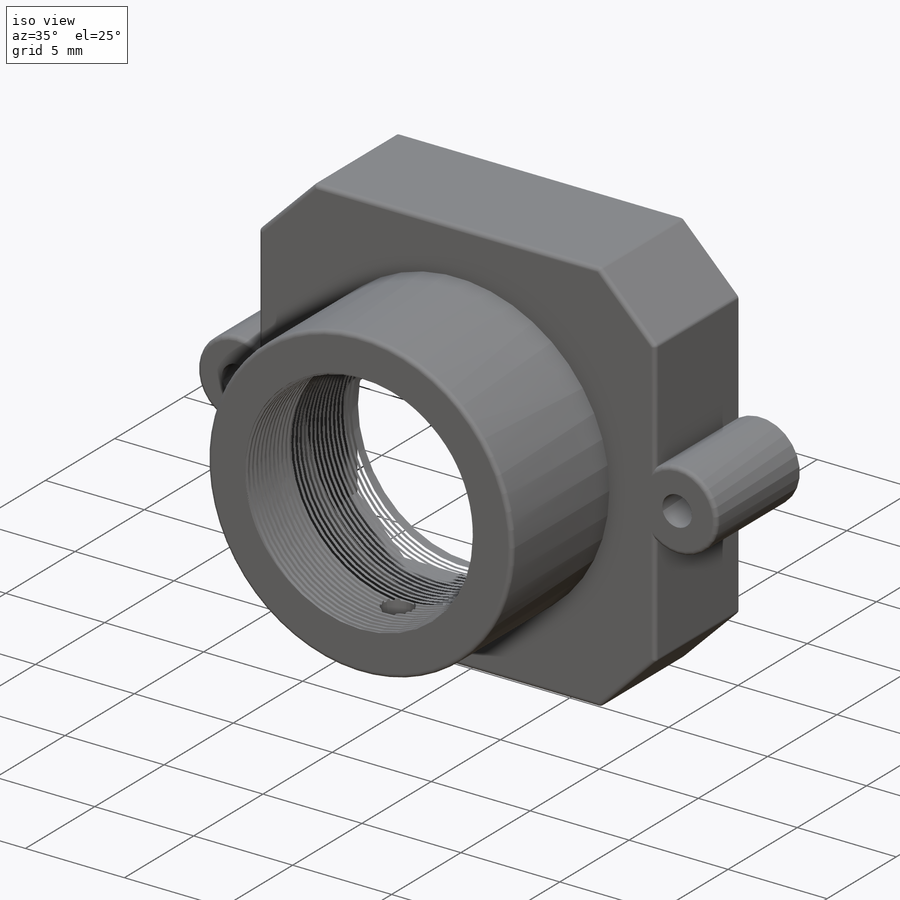
[diagram: iso view]
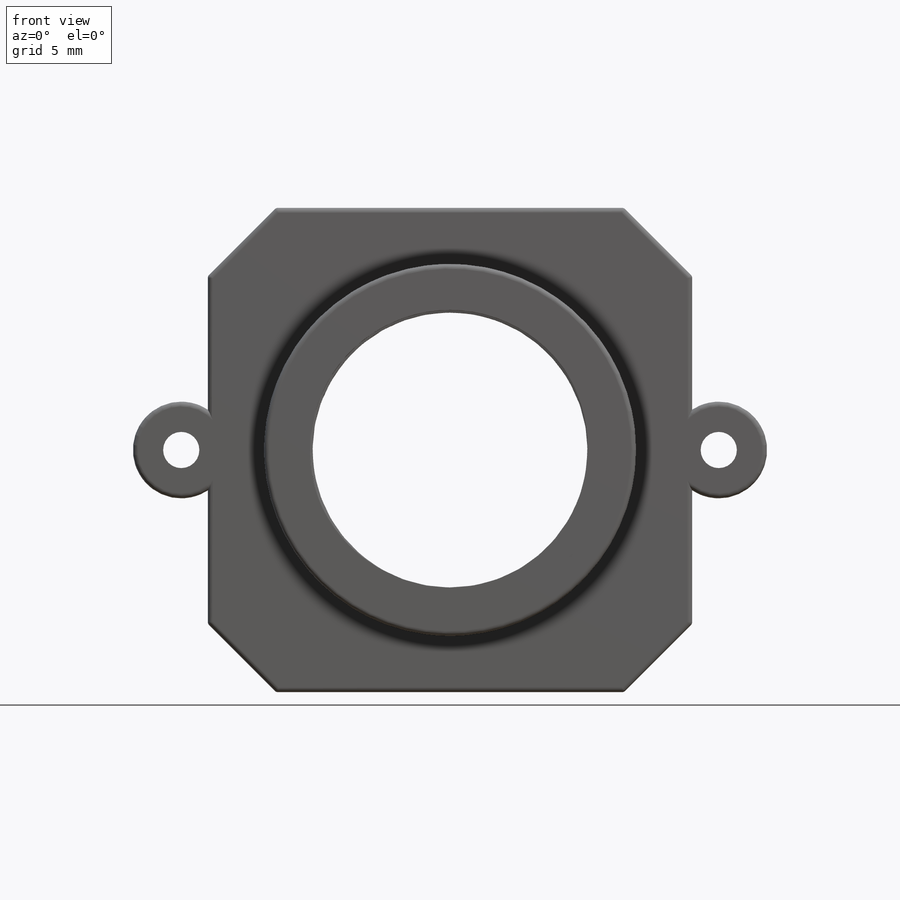
[diagram: front view]
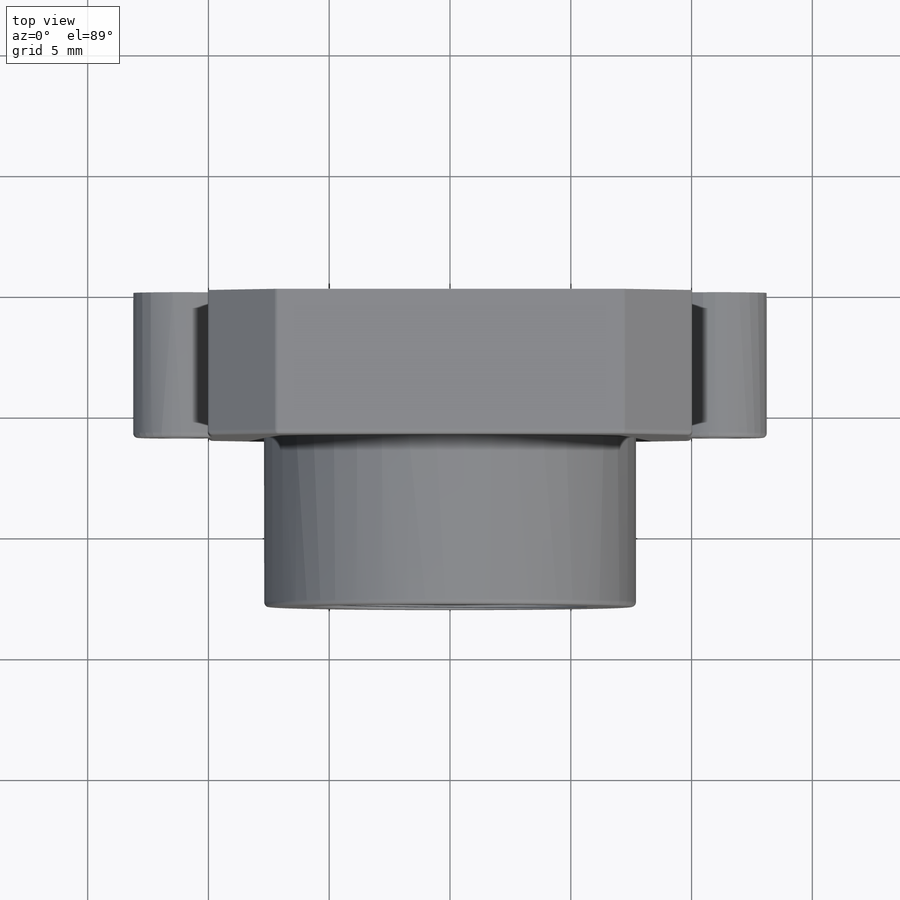
[diagram: top view]
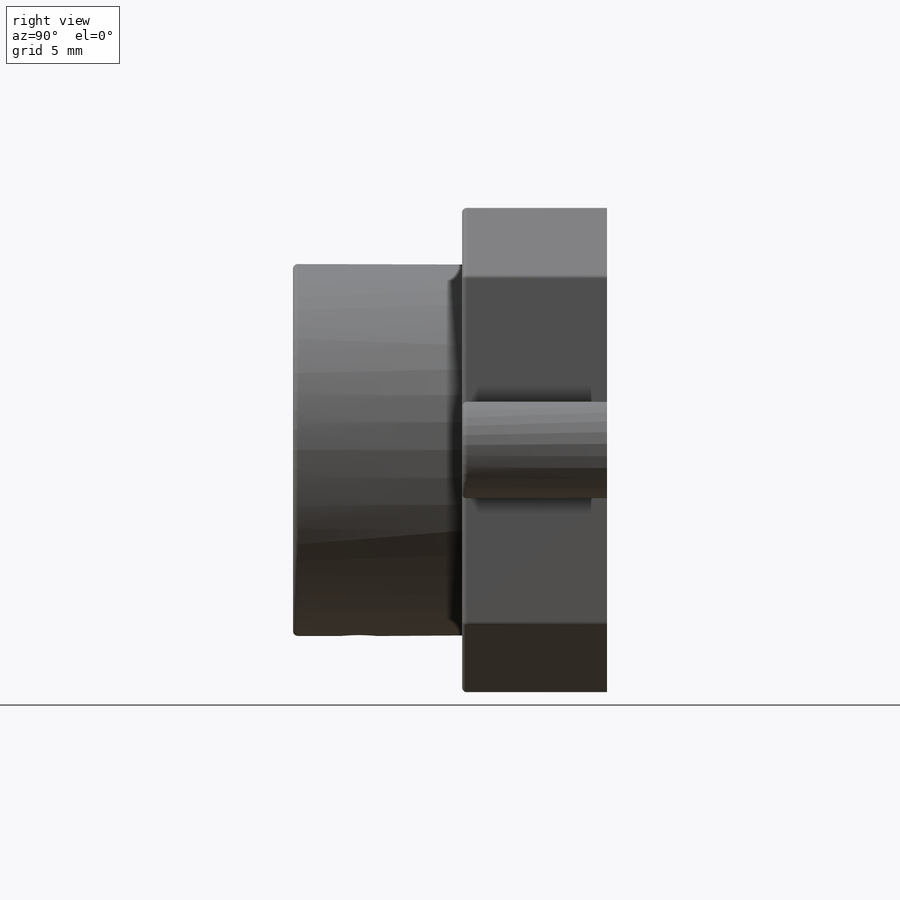
[diagram: right view]
SOLIDWORKS PART (.sldprt)
format: sldprt  version: not decoded by parser v0  size: 1,136,128 bytes
history: native  units: mm
features: sketch x10, plane x3, extrude x3, hole x2, material x1, cut_extrude x1, thread x1, fillet x1, helix x1, sweep x1 (+10 scaffold rows collapsed)
feature tree (34):
  scaffold x10  (default folders/planes/origin — collapsed)
  material  "材质 <未指定>"
  plane  "前视基准面"
  plane  "上视基准面"
  plane  "右视基准面"
  sketch  "草图1"  dims[c1.D2=4.0mm c1.D5=4.0mm c1.D1=20.05mm c2.D2=20.05mm c2.D3=4.0mm c2.D1=20.05mm c3.D2=~14.393146mm c3.D5=1.5mm c3.D6=1.2mm c3.D7=1.2mm c4.D6=1.1mm c4.D7=1.1mm c4.D8=1.2mm c4.D4=4.0]
  extrude  "凸台-拉伸1"  Depth=6mm
  sketch  "草图2"  dims[D1=0.4mm]
  cut_extrude  "切除-拉伸1"  Depth=1.5mm
  hole  "大小mm 暗销孔1"  [1 undecoded]
  sketch  "3D草图1"
  sketch  "草图3"  dims[hole-wizard template sketch: 59 standard entries collapsed; hole parameters kept: c18.通孔孔直径=1.5mm c18.通孔孔深度=6.0mm]
  sketch  "草图4"  dims[D1=11.4mm]
  extrude  "凸台-拉伸2"  Depth=1mm
  sketch  "草图5"  dims[D1=15.4mm D2=11.4mm]
  extrude  "凸台-拉伸3"  Depth=7mm
  hole  "大小mm 暗销孔2"  [1 undecoded]
  sketch  "3D草图5"
  sketch  "草图10"  dims[hole-wizard template sketch: 59 standard entries collapsed; hole parameters kept: c18.通孔孔直径=1.5mm c18.通孔孔深度=~4.340429mm]
  thread  "装饰螺纹线3"  Diameter=1.8mm  [1 undecoded]
  fillet  "圆角1"  Radius=0.2mm
  sketch  "草图11"
  helix  "螺旋线/涡状线1"  Pitch=7.5mm
  sketch  "草图12"  dims[D1=0.2mm D2=0.14mm D3=0.1mm]
  sweep  "切除-扫描1"
decode coverage: 14 of 20 modeling features carry decoded parameters
note: ~ marks probable driven/reference dimensions
note: 3 parameter values undecoded
note: suppression state not decoded; provenance and decode notes live in map.json
